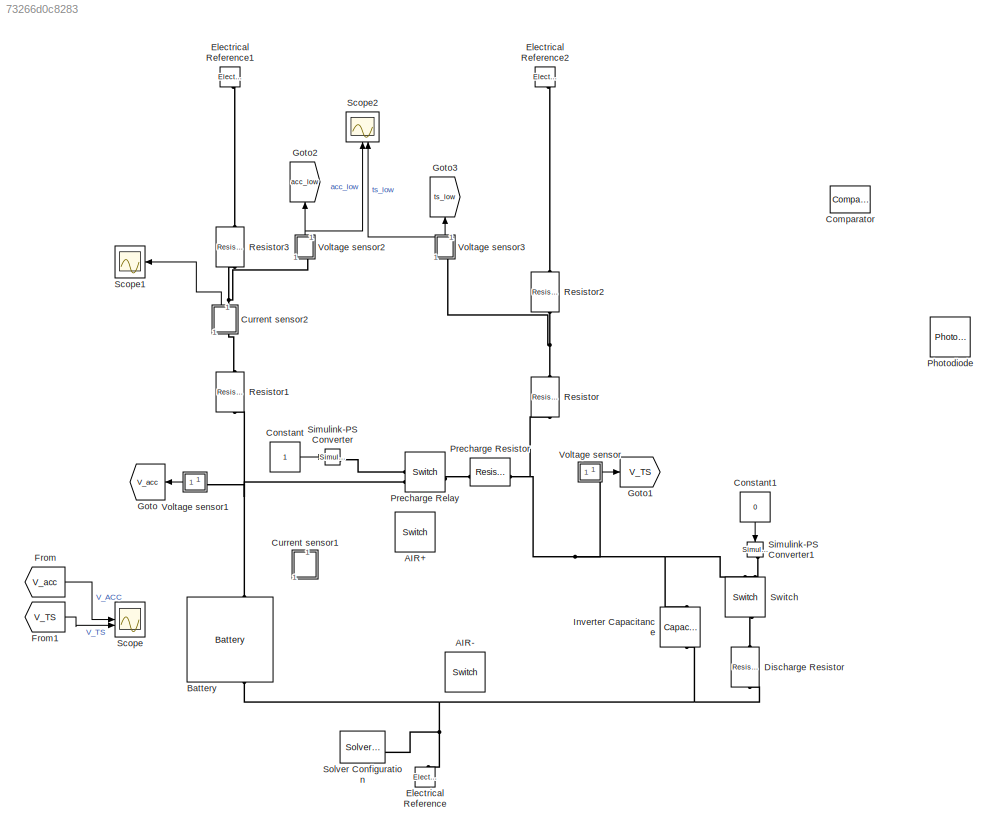
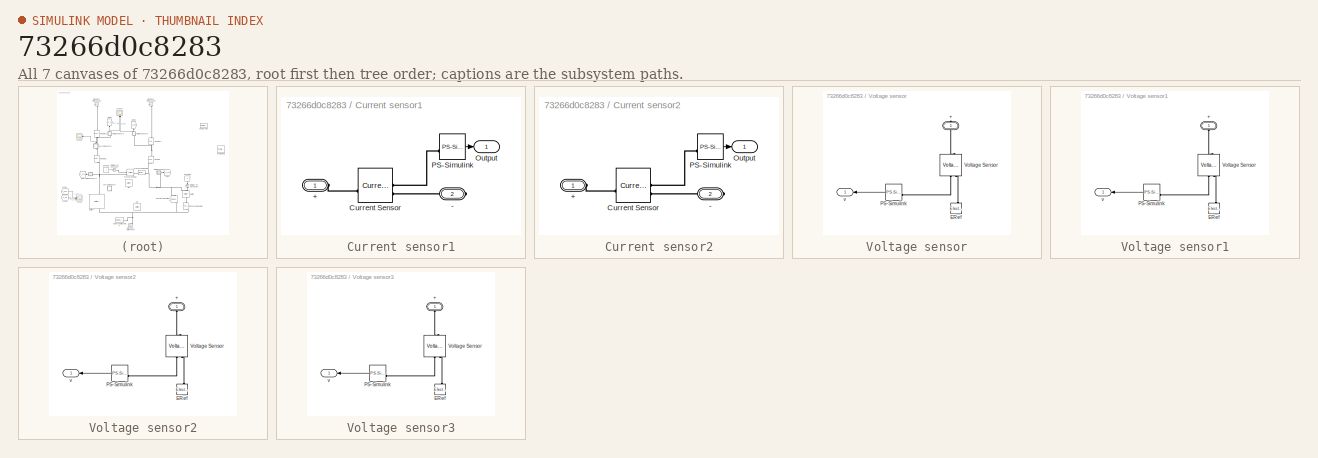
[diagram: thumbnail index - all 7 canvases of the model, root first then tree order]
MODEL slx_73266d0c8283
KIND model
CONFIG AbsTol = auto
CONFIG EnableMultiTasking = off
CONFIG FixedStep = auto
CONFIG MaxStep = auto
CONFIG MinStep = auto
CONFIG RelTol = 1e-3
CONFIG SampleTimeConstraint = Unconstrained
CONFIG SolverName = VariableStepAuto
CONFIG StartTime = 0.0
CONFIG StopTime = 10
BLOCK [Reference] AIR+  REF=fl_lib/Electrical/Electrical Elements/Switch
  Commented = on
  SourceBlock = fl_lib/Electrical/Electrical Elements/Switch
  SourceType = Switch
BLOCK [Reference] AIR-  REF=fl_lib/Electrical/Electrical Elements/Switch
  Commented = on
  SourceBlock = fl_lib/Electrical/Electrical Elements/Switch
  SourceType = Switch
BLOCK [Reference] Battery  REF=batteryecm_lib/Battery
  LibrarySourceBlock = ee_lib/Sources/Battery
  NameLocation = right
  SourceBlock = batteryecm_lib/Battery
  SourceType = Battery
BLOCK [Reference] Comparator  REF=ee_lib/Integrated Circuits/Comparator
  SourceBlock = ee_lib/Integrated Circuits/Comparator
  SourceType = Comparator
BLOCK [Constant] Constant
BLOCK [Constant] Constant1
  NameLocation = left
  Value = 0
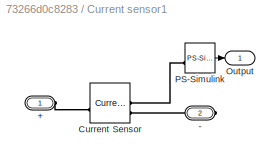
BLOCK [SubSystem] Current sensor1
  Commented = on
  NameLocation = right
BLOCK [PMIOPort] Current sensor1/+
  Side = Left
BLOCK [PMIOPort] Current sensor1/-
  Port = 2
  Side = Right
BLOCK [Reference] Current sensor1/Current Sensor  REF=fl_lib/Electrical/Electrical Sensors/Current Sensor
  SourceBlock = fl_lib/Electrical/Electrical Sensors/Current Sensor
  SourceType = Current Sensor
BLOCK [Outport] Current sensor1/Output
BLOCK [Reference] Current sensor1/PS-Simulink  REF=nesl_utility/PS-Simulink
Converter
  SourceBlock = nesl_utility/PS-Simulink\nConverter
  SourceType = PS-Simulink\nConverter
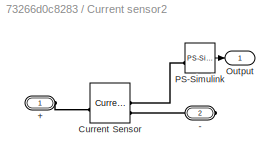
BLOCK [SubSystem] Current sensor2
  NameLocation = right
BLOCK [PMIOPort] Current sensor2/+
  Side = Left
BLOCK [PMIOPort] Current sensor2/-
  Port = 2
  Side = Right
BLOCK [Reference] Current sensor2/Current Sensor  REF=fl_lib/Electrical/Electrical Sensors/Current Sensor
  SourceBlock = fl_lib/Electrical/Electrical Sensors/Current Sensor
  SourceType = Current Sensor
BLOCK [Outport] Current sensor2/Output
BLOCK [Reference] Current sensor2/PS-Simulink  REF=nesl_utility/PS-Simulink
Converter
  SourceBlock = nesl_utility/PS-Simulink\nConverter
  SourceType = PS-Simulink\nConverter
BLOCK [Reference] Discharge Resistor  REF=fl_lib/Electrical/Electrical Elements/Resistor
  NameLocation = right
  SourceBlock = fl_lib/Electrical/Electrical Elements/Resistor
  SourceType = Resistor
BLOCK [Reference] Electrical Reference  REF=fl_lib/Electrical/Electrical Elements/Electrical Reference
  NameLocation = right
  SourceBlock = fl_lib/Electrical/Electrical Elements/Electrical Reference
  SourceType = Electrical Reference
BLOCK [Reference] Electrical Reference1  REF=fl_lib/Electrical/Electrical Elements/Electrical Reference
  NameLocation = left
  SourceBlock = fl_lib/Electrical/Electrical Elements/Electrical Reference
  SourceType = Electrical Reference
BLOCK [Reference] Electrical Reference2  REF=fl_lib/Electrical/Electrical Elements/Electrical Reference
  NameLocation = left
  SourceBlock = fl_lib/Electrical/Electrical Elements/Electrical Reference
  SourceType = Electrical Reference
BLOCK [From] From
  GotoTag = V_acc
BLOCK [From] From1
  GotoTag = V_TS
BLOCK [Goto] Goto
  GotoTag = V_acc
  NameLocation = top
BLOCK [Goto] Goto1
  GotoTag = V_TS
BLOCK [Goto] Goto2
  GotoTag = acc_low
  NameLocation = right
BLOCK [Goto] Goto3
  GotoTag = ts_low
  NameLocation = right
BLOCK [Reference] Inverter Capacitance  REF=fl_lib/Electrical/Electrical Elements/Capacitor
  NameLocation = left
  SourceBlock = fl_lib/Electrical/Electrical Elements/Capacitor
  SourceType = Capacitor
BLOCK [Reference] Photodiode  REF=ee_lib/Sensors &
Transducers/Photodiode
  SourceBlock = ee_lib/Sensors &\nTransducers/Photodiode
  SourceType = Photodiode
BLOCK [Reference] Precharge Relay  REF=fl_lib/Electrical/Electrical Elements/Switch
  NameLocation = left
  SourceBlock = fl_lib/Electrical/Electrical Elements/Switch
  SourceType = Switch
BLOCK [Reference] Precharge Resistor  REF=fl_lib/Electrical/Electrical Elements/Resistor
  NameLocation = top
  SourceBlock = fl_lib/Electrical/Electrical Elements/Resistor
  SourceType = Resistor
BLOCK [Reference] Resistor  REF=fl_lib/Electrical/Electrical Elements/Resistor
  NameLocation = right
  SourceBlock = fl_lib/Electrical/Electrical Elements/Resistor
  SourceType = Resistor
BLOCK [Reference] Resistor1  REF=fl_lib/Electrical/Electrical Elements/Resistor
  NameLocation = right
  SourceBlock = fl_lib/Electrical/Electrical Elements/Resistor
  SourceType = Resistor
BLOCK [Reference] Resistor2  REF=fl_lib/Electrical/Electrical Elements/Resistor
  NameLocation = right
  SourceBlock = fl_lib/Electrical/Electrical Elements/Resistor
  SourceType = Resistor
BLOCK [Reference] Resistor3  REF=fl_lib/Electrical/Electrical Elements/Resistor
  NameLocation = right
  SourceBlock = fl_lib/Electrical/Electrical Elements/Resistor
  SourceType = Resistor
BLOCK [Scope] Scope
  Floating = off
  NumInputPorts = 2
  ScopeSpecificationString = Simulink.scopes.TimeScopeBlockCfg('CurrentConfiguration', extmgr.ConfigurationSet(extmgr.Configuration('Core','General UI',true),extmgr.Configuration('Core','Source UI',true),extmgr.Configuration('Sources','WiredSimulink',true,'DataLogging',true,'DataLoggingSaveFormat','StructureWithTime'),extmgr.Configuration('Visuals','Time Domain',true,'SerializedDisplays',{struct('MinYLimReal','-58.8','MaxYLim...<+1629ch>
BLOCK [Scope] Scope1
  Floating = off
  NameLocation = top
  NumInputPorts = 1
  ScopeSpecificationString = Simulink.scopes.TimeScopeBlockCfg('CurrentConfiguration', extmgr.ConfigurationSet(extmgr.Configuration('Core','General UI',true),extmgr.Configuration('Core','Source UI',true),extmgr.Configuration('Sources','WiredSimulink',true,'DataLoggingVariableName','ScopeData1'),extmgr.Configuration('Visuals','Time Domain',true,'SerializedDisplays',{struct('MinYLimReal','0.0051415382','MaxYLimReal','0.00514154...<+1530ch>
BLOCK [Scope] Scope2
  Floating = off
  NameLocation = right
  NumInputPorts = 2
  ScopeSpecificationString = Simulink.scopes.TimeScopeBlockCfg('CurrentConfiguration', extmgr.ConfigurationSet(extmgr.Configuration('Core','General UI',true),extmgr.Configuration('Core','Source UI',true),extmgr.Configuration('Sources','WiredSimulink',true,'DataLoggingVariableName','ScopeData2','DataLogging',true,'DataLoggingSaveFormat','StructureWithTime'),extmgr.Configuration('Visuals','Time Domain',true,'SerializedDisplays'...<+1598ch>
BLOCK [Reference] Simulink-PS Converter  REF=nesl_utility/Simulink-PS
Converter
  SourceBlock = nesl_utility/Simulink-PS\nConverter
  SourceType = Simulink-PS\nConverter
BLOCK [Reference] Simulink-PS Converter1  REF=nesl_utility/Simulink-PS
Converter
  NameLocation = left
  SourceBlock = nesl_utility/Simulink-PS\nConverter
  SourceType = Simulink-PS\nConverter
BLOCK [Reference] Solver Configuration  REF=nesl_utility/Solver
Configuration
  SourceBlock = nesl_utility/Solver\nConfiguration
  SourceType = Solver\nConfiguration
BLOCK [Reference] Switch  REF=fl_lib/Electrical/Electrical Elements/Switch
  NameLocation = left
  SourceBlock = fl_lib/Electrical/Electrical Elements/Switch
  SourceType = Switch
BLOCK [SubSystem] Voltage sensor
  CopyFcn = set_param(gcb,'LinkStatus','none')
  PortSchema = {"entries":[{"content":{"sides":[{"content":{},"type":"ConnectorPlacement.EquallySpacedRectSide","uuid":"496dff60-bd36-4a6e-8009-b027278f8b53"},{"content":{"connectorIds":["Out1"],"side":"RIGHT"},"type":"ConnectorPlacement.EquallySpacedRectSide","uuid":"8027154c-d6c4-4fcd-a31c-536d66086028"},{"content":{"side":"TOP"},"type":"ConnectorPlacement.EquallySpacedRectSide","uuid":"0a82e9cb-4b27-4335-85be...<+352ch>
BLOCK [PMIOPort] Voltage sensor/+
  NameLocation = right
  Side = Right
BLOCK [Reference] Voltage sensor/ERef  REF=fl_lib/Electrical/Electrical Elements/Electrical Reference
  NameLocation = right
  SourceBlock = fl_lib/Electrical/Electrical Elements/Electrical Reference
  SourceType = Electrical Reference
BLOCK [Reference] Voltage sensor/PS-Simulink  REF=nesl_utility/PS-Simulink
Converter
  SourceBlock = nesl_utility/PS-Simulink\nConverter
  SourceType = PS-Simulink\nConverter
BLOCK [Reference] Voltage sensor/Voltage Sensor  REF=fl_lib/Electrical/Electrical Sensors/Voltage Sensor
  NameLocation = right
  SourceBlock = fl_lib/Electrical/Electrical Sensors/Voltage Sensor
  SourceType = Voltage Sensor
BLOCK [Outport] Voltage sensor/v
  VectorParamsAs1DForOutWhenUnconnected = off
BLOCK [SubSystem] Voltage sensor1
  CopyFcn = set_param(gcb,'LinkStatus','none')
  NameLocation = top
BLOCK [PMIOPort] Voltage sensor1/+
  NameLocation = right
  Side = Left
BLOCK [Reference] Voltage sensor1/ERef  REF=fl_lib/Electrical/Electrical Elements/Electrical Reference
  NameLocation = right
  SourceBlock = fl_lib/Electrical/Electrical Elements/Electrical Reference
  SourceType = Electrical Reference
BLOCK [Reference] Voltage sensor1/PS-Simulink  REF=nesl_utility/PS-Simulink
Converter
  SourceBlock = nesl_utility/PS-Simulink\nConverter
  SourceType = PS-Simulink\nConverter
BLOCK [Reference] Voltage sensor1/Voltage Sensor  REF=fl_lib/Electrical/Electrical Sensors/Voltage Sensor
  NameLocation = right
  SourceBlock = fl_lib/Electrical/Electrical Sensors/Voltage Sensor
  SourceType = Voltage Sensor
BLOCK [Outport] Voltage sensor1/v
  VectorParamsAs1DForOutWhenUnconnected = off
BLOCK [SubSystem] Voltage sensor2
  CopyFcn = set_param(gcb,'LinkStatus','none')
  NameLocation = right
BLOCK [PMIOPort] Voltage sensor2/+
  NameLocation = right
  Side = Left
BLOCK [Reference] Voltage sensor2/ERef  REF=fl_lib/Electrical/Electrical Elements/Electrical Reference
  NameLocation = right
  SourceBlock = fl_lib/Electrical/Electrical Elements/Electrical Reference
  SourceType = Electrical Reference
BLOCK [Reference] Voltage sensor2/PS-Simulink  REF=nesl_utility/PS-Simulink
Converter
  SourceBlock = nesl_utility/PS-Simulink\nConverter
  SourceType = PS-Simulink\nConverter
BLOCK [Reference] Voltage sensor2/Voltage Sensor  REF=fl_lib/Electrical/Electrical Sensors/Voltage Sensor
  NameLocation = right
  SourceBlock = fl_lib/Electrical/Electrical Sensors/Voltage Sensor
  SourceType = Voltage Sensor
BLOCK [Outport] Voltage sensor2/v
  VectorParamsAs1DForOutWhenUnconnected = off
BLOCK [SubSystem] Voltage sensor3
  CopyFcn = set_param(gcb,'LinkStatus','none')
  NameLocation = right
BLOCK [PMIOPort] Voltage sensor3/+
  NameLocation = right
  Side = Left
BLOCK [Reference] Voltage sensor3/ERef  REF=fl_lib/Electrical/Electrical Elements/Electrical Reference
  NameLocation = right
  SourceBlock = fl_lib/Electrical/Electrical Elements/Electrical Reference
  SourceType = Electrical Reference
BLOCK [Reference] Voltage sensor3/PS-Simulink  REF=nesl_utility/PS-Simulink
Converter
  SourceBlock = nesl_utility/PS-Simulink\nConverter
  SourceType = PS-Simulink\nConverter
BLOCK [Reference] Voltage sensor3/Voltage Sensor  REF=fl_lib/Electrical/Electrical Sensors/Voltage Sensor
  NameLocation = right
  SourceBlock = fl_lib/Electrical/Electrical Sensors/Voltage Sensor
  SourceType = Voltage Sensor
BLOCK [Outport] Voltage sensor3/v
  VectorParamsAs1DForOutWhenUnconnected = off
LINE Constant1:1 -> Simulink-PS Converter1:1
LINE Constant:1 -> Simulink-PS Converter:1
LINE Current sensor1/PS-Simulink:1 -> Current sensor1/Output:1
LINE Current sensor2/PS-Simulink:1 -> Current sensor2/Output:1
LINE Current sensor2:1 -> Scope1:1
LINE From1:1 -> Scope:2
LINE From:1 -> Scope:1
LINE Voltage sensor/PS-Simulink:1 -> Voltage sensor/v:1
LINE Voltage sensor1/PS-Simulink:1 -> Voltage sensor1/v:1
LINE Voltage sensor1:1 -> Goto:1
LINE Voltage sensor2/PS-Simulink:1 -> Voltage sensor2/v:1
NET Voltage sensor2:1 -> Goto2:1, Scope2:1
LINE Voltage sensor3/PS-Simulink:1 -> Voltage sensor3/v:1
NET Voltage sensor3:1 -> Goto3:1, Scope2:2
LINE Voltage sensor:1 -> Goto1:1
PNET net1: Battery:LConn1 -- Precharge Relay:RConn2 -- Resistor1:LConn1 -- Voltage sensor1:LConn1
PNET net2: Battery:RConn1 -- Discharge Resistor:RConn1 -- Electrical Reference:LConn1 -- Inverter Capacitance:RConn1 -- Solver Configuration:RConn1
PLINE Current sensor1/+:RConn1 -- Current sensor1/Current Sensor:LConn1
PLINE Current sensor1/-:RConn1 -- Current sensor1/Current Sensor:RConn2
PLINE Current sensor1/Current Sensor:RConn1 -- Current sensor1/PS-Simulink:LConn1
PLINE Current sensor2/+:RConn1 -- Current sensor2/Current Sensor:LConn1
PLINE Current sensor2/-:RConn1 -- Current sensor2/Current Sensor:RConn2
PLINE Current sensor2/Current Sensor:RConn1 -- Current sensor2/PS-Simulink:LConn1
PLINE Current sensor2:LConn1 -- Resistor1:RConn1
PNET net3: Current sensor2:RConn1 -- Resistor3:LConn1 -- Voltage sensor2:LConn1
PLINE Discharge Resistor:LConn1 -- Switch:LConn1
PLINE Electrical Reference1:LConn1 -- Resistor3:RConn1
PLINE Electrical Reference2:LConn1 -- Resistor2:RConn1
PNET net4: Inverter Capacitance:LConn1 -- Precharge Resistor:RConn1 -- Resistor:LConn1 -- Switch:RConn2 -- Voltage sensor:RConn1
PLINE Precharge Relay:LConn1 -- Precharge Resistor:LConn1
PLINE Precharge Relay:RConn1 -- Simulink-PS Converter:RConn1
PNET net5: Resistor2:LConn1 -- Resistor:RConn1 -- Voltage sensor3:LConn1
PLINE Simulink-PS Converter1:RConn1 -- Switch:RConn1
PLINE Voltage sensor/+:RConn1 -- Voltage sensor/Voltage Sensor:LConn1
PLINE Voltage sensor/ERef:LConn1 -- Voltage sensor/Voltage Sensor:RConn2
PLINE Voltage sensor/PS-Simulink:LConn1 -- Voltage sensor/Voltage Sensor:RConn1
PLINE Voltage sensor1/+:RConn1 -- Voltage sensor1/Voltage Sensor:LConn1
PLINE Voltage sensor1/ERef:LConn1 -- Voltage sensor1/Voltage Sensor:RConn2
PLINE Voltage sensor1/PS-Simulink:LConn1 -- Voltage sensor1/Voltage Sensor:RConn1
PLINE Voltage sensor2/+:RConn1 -- Voltage sensor2/Voltage Sensor:LConn1
PLINE Voltage sensor2/ERef:LConn1 -- Voltage sensor2/Voltage Sensor:RConn2
PLINE Voltage sensor2/PS-Simulink:LConn1 -- Voltage sensor2/Voltage Sensor:RConn1
PLINE Voltage sensor3/+:RConn1 -- Voltage sensor3/Voltage Sensor:LConn1
PLINE Voltage sensor3/ERef:LConn1 -- Voltage sensor3/Voltage Sensor:RConn2
PLINE Voltage sensor3/PS-Simulink:LConn1 -- Voltage sensor3/Voltage Sensor:RConn1
note: NET lines group one-source signal fan-out (src -> all destinations, sorted); 1:1 wires keep LINE; PNET lines group multi-terminal physical nets as a canonical sorted terminal list (undirected conserving connections); 2-terminal nets keep the pairwise PLINE form
